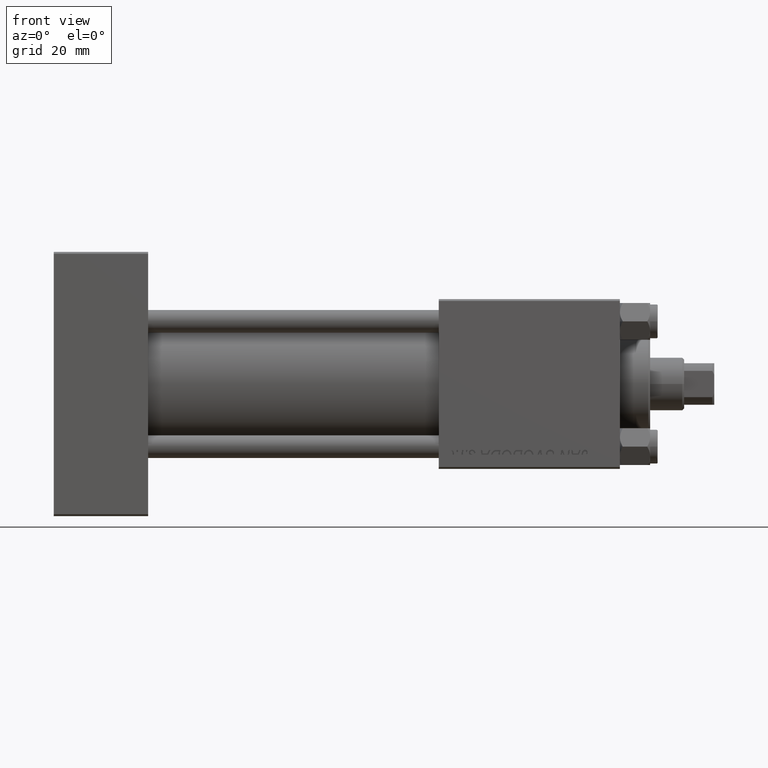
[diagram: clean part render]
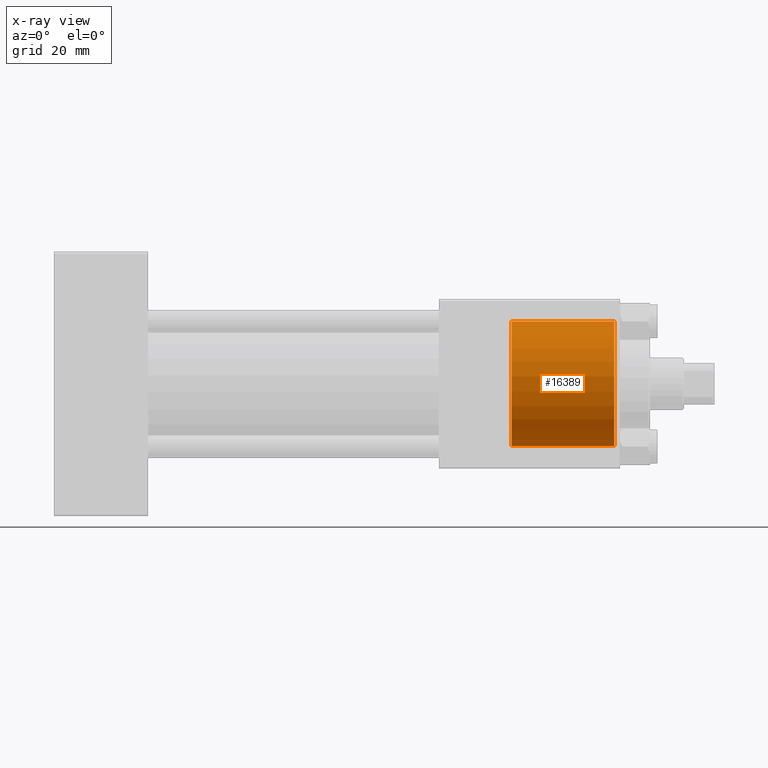
[diagram: x-ray — body ghosted, one internal face saturated and labeled with its STEP entity id]
A machine part, front view, then the same camera in x-ray: the body is ghosted and one INTERNAL B-rep face — a face not visible from any outside direction — is saturated and labeled: STEP entity #16389.
In plain terms, the highlighted cylindrical surface (partial cylindrical patch) has radius 16.5 mm, axis along (1, 0, 0).
Its self-contained STEP definition (entity closure, byte-faithful):
#464 = CIRCLE ( 'NONE', #34371, 16.50000000000000000 ) ;
#1050 = VERTEX_POINT ( 'NONE', #16245 ) ;
#5613 = CARTESIAN_POINT ( 'NONE',  ( 121.3000000000000256, 0.000000000000000000, -16.50000000000000000 ) ) ;
#6951 = AXIS2_PLACEMENT_3D ( 'NONE', #16347, #15360, #31501 ) ;
#9681 = EDGE_CURVE ( 'NONE', #27421, #43230, #49633, .T. ) ;
#10909 = DIRECTION ( 'NONE',  ( 1.000000000000000000, 0.000000000000000000, 0.000000000000000000 ) ) ;
#11369 = DIRECTION ( 'NONE',  ( 1.000000000000000000, 0.000000000000000000, 0.000000000000000000 ) ) ;
#12434 = ORIENTED_EDGE ( 'NONE', *, *, #47666, .F. ) ;
#12519 = AXIS2_PLACEMENT_3D ( 'NONE', #45983, #11369, #46226 ) ;
#14909 = EDGE_CURVE ( 'NONE', #1050, #49676, #464, .T. ) ;
#15360 = DIRECTION ( 'NONE',  ( 1.000000000000000000, -0.000000000000000000, -0.000000000000000000 ) ) ;
#16245 = CARTESIAN_POINT ( 'NONE',  ( 121.3000000000000256, 2.020667218593133100E-15, 16.50000000000000000 ) ) ;
#16347 = CARTESIAN_POINT ( 'NONE',  ( 121.3000000000000256, 0.000000000000000000, 0.000000000000000000 ) ) ;
#16389 = ADVANCED_FACE ( 'NONE', ( #23935 ), #35784, .F. ) ;
#17585 = ORIENTED_EDGE ( 'NONE', *, *, #9681, .T. ) ;
#20638 = LINE ( 'NONE', #45060, #32156 ) ;
#21040 = LINE ( 'NONE', #5613, #48605 ) ;
#23935 = FACE_OUTER_BOUND ( 'NONE', #44042, .T. ) ;
#24426 = DIRECTION ( 'NONE',  ( 1.000000000000000000, -0.000000000000000000, -0.000000000000000000 ) ) ;
#27421 = VERTEX_POINT ( 'NONE', #37495 ) ;
#28071 = DIRECTION ( 'NONE',  ( 0.000000000000000000, 0.000000000000000000, -1.000000000000000000 ) ) ;
#28153 = ORIENTED_EDGE ( 'NONE', *, *, #41415, .T. ) ;
#31501 = DIRECTION ( 'NONE',  ( 0.000000000000000000, 0.000000000000000000, -1.000000000000000000 ) ) ;
#31984 = ORIENTED_EDGE ( 'NONE', *, *, #14909, .F. ) ;
#32156 = VECTOR ( 'NONE', #24426, 1000.000000000000000 ) ;
#32998 = CARTESIAN_POINT ( 'NONE',  ( 148.5000000000000284, 0.000000000000000000, -16.50000000000000000 ) ) ;
#34371 = AXIS2_PLACEMENT_3D ( 'NONE', #49311, #10909, #28071 ) ;
#35784 = CYLINDRICAL_SURFACE ( 'NONE', #6951, 16.50000000000000000 ) ;
#37495 = CARTESIAN_POINT ( 'NONE',  ( 148.5000000000000284, 2.020667218593133100E-15, 16.50000000000000000 ) ) ;
#40571 = CARTESIAN_POINT ( 'NONE',  ( 121.3000000000000256, 0.000000000000000000, -16.50000000000000000 ) ) ;
#41415 = EDGE_CURVE ( 'NONE', #1050, #27421, #20638, .T. ) ;
#43230 = VERTEX_POINT ( 'NONE', #32998 ) ;
#43543 = DIRECTION ( 'NONE',  ( 1.000000000000000000, -0.000000000000000000, -0.000000000000000000 ) ) ;
#44042 = EDGE_LOOP ( 'NONE', ( #31984, #28153, #17585, #12434 ) ) ;
#45060 = CARTESIAN_POINT ( 'NONE',  ( 121.3000000000000256, 2.020667218593133100E-15, 16.50000000000000000 ) ) ;
#45983 = CARTESIAN_POINT ( 'NONE',  ( 148.5000000000000284, 0.000000000000000000, 0.000000000000000000 ) ) ;
#46226 = DIRECTION ( 'NONE',  ( 0.000000000000000000, 0.000000000000000000, 1.000000000000000000 ) ) ;
#47666 = EDGE_CURVE ( 'NONE', #49676, #43230, #21040, .T. ) ;
#48605 = VECTOR ( 'NONE', #43543, 1000.000000000000000 ) ;
#49311 = CARTESIAN_POINT ( 'NONE',  ( 121.3000000000000256, 0.000000000000000000, 0.000000000000000000 ) ) ;
#49633 = CIRCLE ( 'NONE', #12519, 16.50000000000000000 ) ;
#49676 = VERTEX_POINT ( 'NONE', #40571 ) ;